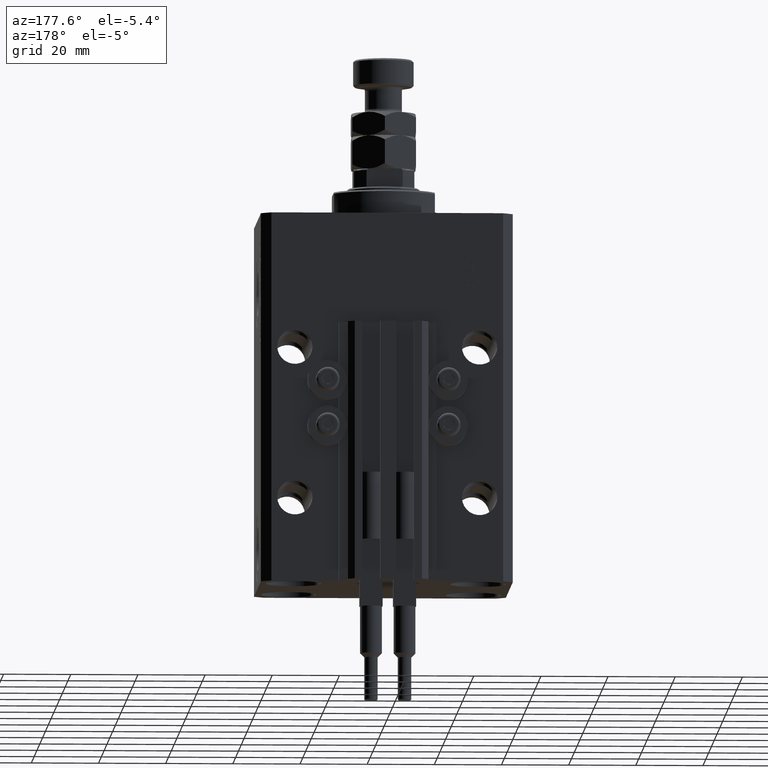
[diagram: clean part render]
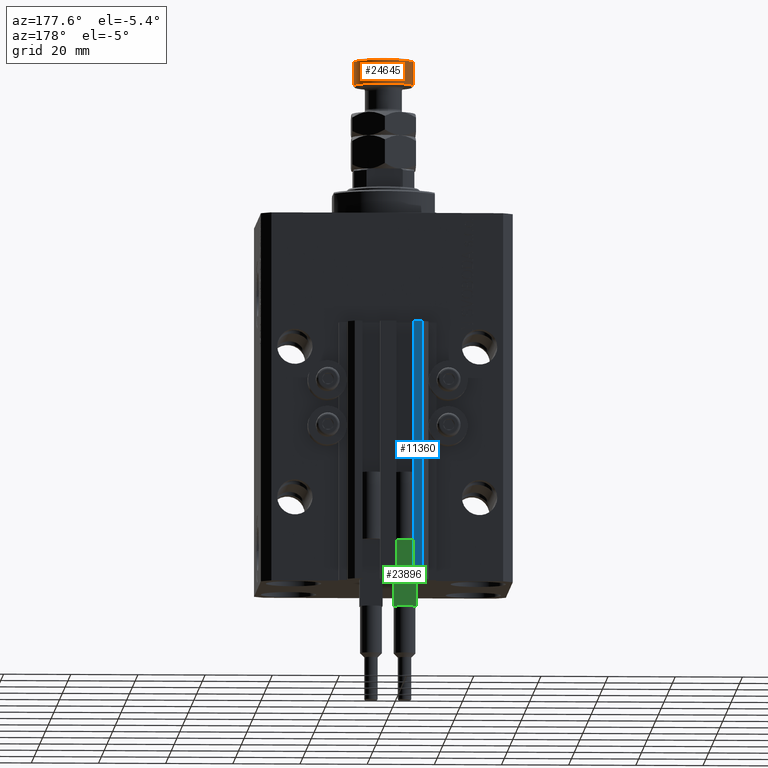
[diagram: same view with three faces highlighted in distinct colors, each labeled with its STEP entity id]
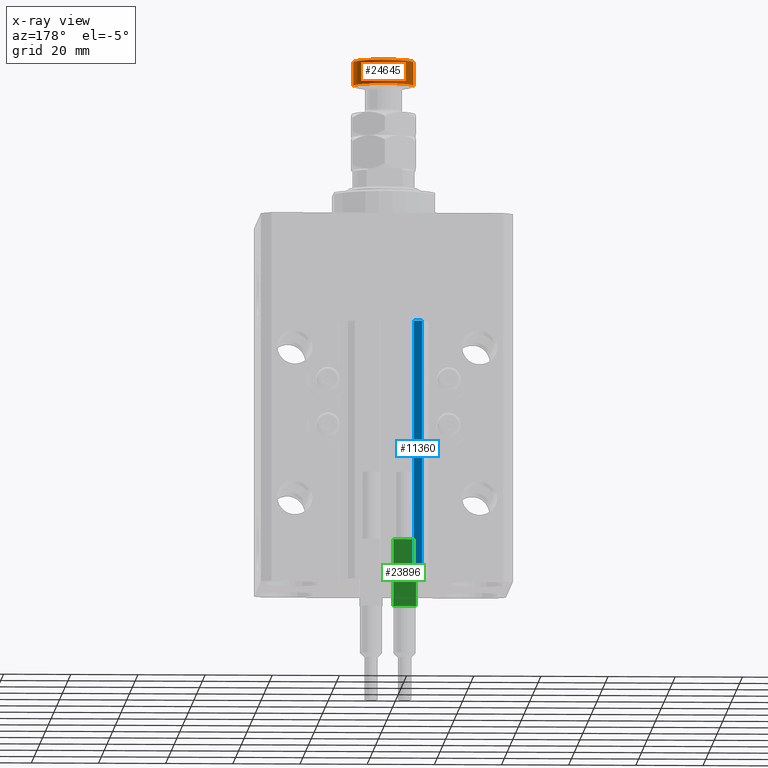
[diagram: x-ray of the same camera — body ghosted, the three highlighted faces saturated]
A machine part, auxiliary view with three faces highlighted in distinct colors.
The next image is the same camera in x-ray (body ghosted, the three faces saturated) — at least one of them is partly hidden behind the body in this view.
Their STEP definitions:

[orange] entity #24645 — the highlighted cylindrical surface (edge-blend (fillet) strip) has radius 9 mm, axis along (-0, -0, -1).
#549 = EDGE_CURVE ( 'NONE', #36431, #32442, #13982, .T. ) ;
#1425 = ORIENTED_EDGE ( 'NONE', *, *, #42925, .T. ) ;
#2677 = EDGE_CURVE ( 'NONE', #24066, #13907, #19487, .T. ) ;
#5591 = CARTESIAN_POINT ( 'NONE',  ( 9.000000000000000000, 1.102182119232617714E-15, 33.00000000000000000 ) ) ;
#6250 = CIRCLE ( 'NONE', #48520, 9.000000000000000000 ) ;
#7547 = DIRECTION ( 'NONE',  ( 1.000000000000000000, 0.000000000000000000, 0.000000000000000000 ) ) ;
#11253 = DIRECTION ( 'NONE',  ( -1.000000000000000000, 0.000000000000000000, 0.000000000000000000 ) ) ;
#11362 = CARTESIAN_POINT ( 'NONE',  ( 0.000000000000000000, 0.000000000000000000, 32.49999999999999289 ) ) ;
#11417 = DIRECTION ( 'NONE',  ( -0.000000000000000000, -0.000000000000000000, 1.000000000000000000 ) ) ;
#13907 = VERTEX_POINT ( 'NONE', #49829 ) ;
#13982 = LINE ( 'NONE', #5591, #33048 ) ;
#15801 = DIRECTION ( 'NONE',  ( -0.000000000000000000, -0.000000000000000000, -1.000000000000000000 ) ) ;
#18743 = DIRECTION ( 'NONE',  ( -0.000000000000000000, -0.000000000000000000, -1.000000000000000000 ) ) ;
#19487 = LINE ( 'NONE', #42159, #28257 ) ;
#20155 = CIRCLE ( 'NONE', #31520, 9.000000000000000000 ) ;
#21188 = AXIS2_PLACEMENT_3D ( 'NONE', #49960, #15801, #11253 ) ;
#22353 = CARTESIAN_POINT ( 'NONE',  ( 0.000000000000000000, 0.000000000000000000, 25.49999999999999289 ) ) ;
#22439 = CYLINDRICAL_SURFACE ( 'NONE', #21188, 9.000000000000000000 ) ;
#24066 = VERTEX_POINT ( 'NONE', #33274 ) ;
#24550 = ORIENTED_EDGE ( 'NONE', *, *, #41730, .T. ) ;
#24645 = ADVANCED_FACE ( 'NONE', ( #35148 ), #22439, .T. ) ;
#25758 = ORIENTED_EDGE ( 'NONE', *, *, #549, .T. ) ;
#28257 = VECTOR ( 'NONE', #18743, 1000.000000000000000 ) ;
#28403 = CARTESIAN_POINT ( 'NONE',  ( 9.000000000000000000, 1.102182119232617714E-15, 32.49999999999999289 ) ) ;
#31520 = AXIS2_PLACEMENT_3D ( 'NONE', #11362, #42416, #7547 ) ;
#31560 = EDGE_LOOP ( 'NONE', ( #1425, #25758, #24550, #31614 ) ) ;
#31614 = ORIENTED_EDGE ( 'NONE', *, *, #2677, .F. ) ;
#32442 = VERTEX_POINT ( 'NONE', #33793 ) ;
#33048 = VECTOR ( 'NONE', #37132, 1000.000000000000000 ) ;
#33274 = CARTESIAN_POINT ( 'NONE',  ( -9.000000000000000000, 0.000000000000000000, 32.49999999999999289 ) ) ;
#33793 = CARTESIAN_POINT ( 'NONE',  ( 9.000000000000000000, 1.102182119232617714E-15, 25.49999999999999289 ) ) ;
#35148 = FACE_OUTER_BOUND ( 'NONE', #31560, .T. ) ;
#36431 = VERTEX_POINT ( 'NONE', #28403 ) ;
#37132 = DIRECTION ( 'NONE',  ( -0.000000000000000000, -0.000000000000000000, -1.000000000000000000 ) ) ;
#37878 = DIRECTION ( 'NONE',  ( 1.000000000000000000, 0.000000000000000000, 0.000000000000000000 ) ) ;
#41730 = EDGE_CURVE ( 'NONE', #32442, #13907, #6250, .T. ) ;
#42159 = CARTESIAN_POINT ( 'NONE',  ( -9.000000000000000000, 0.000000000000000000, 33.00000000000000000 ) ) ;
#42416 = DIRECTION ( 'NONE',  ( 0.000000000000000000, 0.000000000000000000, -1.000000000000000000 ) ) ;
#42925 = EDGE_CURVE ( 'NONE', #24066, #36431, #20155, .T. ) ;
#48520 = AXIS2_PLACEMENT_3D ( 'NONE', #22353, #11417, #37878 ) ;
#49829 = CARTESIAN_POINT ( 'NONE',  ( -9.000000000000000000, 0.000000000000000000, 25.49999999999999289 ) ) ;
#49960 = CARTESIAN_POINT ( 'NONE',  ( 0.000000000000000000, 0.000000000000000000, 33.00000000000000000 ) ) ;

[blue] entity #11360 — the highlighted planar face has unit normal (0, 1, 0).
#766 = LINE ( 'NONE', #31829, #47227 ) ;
#3629 = CARTESIAN_POINT ( 'NONE',  ( -7.650000000000000355, 35.50000000000000000, -110.0000000000000000 ) ) ;
#4836 = CARTESIAN_POINT ( 'NONE',  ( -10.00000000000000000, 35.50000000000000000, -33.00000000000000000 ) ) ;
#5574 = DIRECTION ( 'NONE',  ( 0.000000000000000000, 0.000000000000000000, 1.000000000000000000 ) ) ;
#5875 = VECTOR ( 'NONE', #5574, 1000.000000000000000 ) ;
#10263 = ORIENTED_EDGE ( 'NONE', *, *, #19243, .T. ) ;
#11015 = DIRECTION ( 'NONE',  ( 0.000000000000000000, 1.000000000000000000, -0.000000000000000000 ) ) ;
#11360 = ADVANCED_FACE ( 'NONE', ( #38494 ), #38239, .T. ) ;
#11601 = ORIENTED_EDGE ( 'NONE', *, *, #40109, .F. ) ;
#12067 = ORIENTED_EDGE ( 'NONE', *, *, #26707, .T. ) ;
#12776 = CARTESIAN_POINT ( 'NONE',  ( -7.650000000000000355, 35.50000000000000000, -110.0000000000000000 ) ) ;
#13288 = VERTEX_POINT ( 'NONE', #15795 ) ;
#13454 = LINE ( 'NONE', #40943, #5875 ) ;
#14662 = EDGE_LOOP ( 'NONE', ( #11601, #17227, #12067, #10263 ) ) ;
#15795 = CARTESIAN_POINT ( 'NONE',  ( -10.00000000000000000, 35.50000000000000000, -110.0000000000000000 ) ) ;
#16354 = EDGE_CURVE ( 'NONE', #31378, #30613, #766, .T. ) ;
#17089 = LINE ( 'NONE', #12776, #47296 ) ;
#17227 = ORIENTED_EDGE ( 'NONE', *, *, #16354, .F. ) ;
#19243 = EDGE_CURVE ( 'NONE', #13288, #44302, #13454, .T. ) ;
#20275 = CARTESIAN_POINT ( 'NONE',  ( -7.650000000000000355, 35.50000000000000000, -110.0000000000000000 ) ) ;
#24404 = AXIS2_PLACEMENT_3D ( 'NONE', #3629, #11015, #42329 ) ;
#26707 = EDGE_CURVE ( 'NONE', #31378, #13288, #17089, .T. ) ;
#27207 = LINE ( 'NONE', #42485, #46869 ) ;
#30613 = VERTEX_POINT ( 'NONE', #43189 ) ;
#31378 = VERTEX_POINT ( 'NONE', #20275 ) ;
#31829 = CARTESIAN_POINT ( 'NONE',  ( -7.650000000000000355, 35.50000000000000000, -110.0000000000000000 ) ) ;
#38239 = PLANE ( 'NONE',  #24404 ) ;
#38494 = FACE_OUTER_BOUND ( 'NONE', #14662, .T. ) ;
#39710 = DIRECTION ( 'NONE',  ( 0.000000000000000000, 0.000000000000000000, 1.000000000000000000 ) ) ;
#40109 = EDGE_CURVE ( 'NONE', #30613, #44302, #27207, .T. ) ;
#40496 = DIRECTION ( 'NONE',  ( -1.000000000000000000, 0.000000000000000000, 0.000000000000000000 ) ) ;
#40943 = CARTESIAN_POINT ( 'NONE',  ( -10.00000000000000000, 35.50000000000000000, -110.0000000000000000 ) ) ;
#42329 = DIRECTION ( 'NONE',  ( 0.000000000000000000, 0.000000000000000000, 1.000000000000000000 ) ) ;
#42485 = CARTESIAN_POINT ( 'NONE',  ( -7.650000000000000355, 35.50000000000000000, -33.00000000000000000 ) ) ;
#43189 = CARTESIAN_POINT ( 'NONE',  ( -7.650000000000000355, 35.50000000000000000, -33.00000000000000000 ) ) ;
#44302 = VERTEX_POINT ( 'NONE', #4836 ) ;
#46869 = VECTOR ( 'NONE', #50134, 1000.000000000000000 ) ;
#47227 = VECTOR ( 'NONE', #39710, 1000.000000000000000 ) ;
#47296 = VECTOR ( 'NONE', #40496, 1000.000000000000000 ) ;
#50134 = DIRECTION ( 'NONE',  ( -1.000000000000000000, 0.000000000000000000, 0.000000000000000000 ) ) ;

[green] entity #23896 — the highlighted planar face has unit normal (0, -1, 0).
#18 = ORIENTED_EDGE ( 'NONE', *, *, #46537, .F. ) ;
#110 = ORIENTED_EDGE ( 'NONE', *, *, #18622, .T. ) ;
#964 = VERTEX_POINT ( 'NONE', #16361 ) ;
#1122 = ORIENTED_EDGE ( 'NONE', *, *, #38233, .T. ) ;
#1557 = DIRECTION ( 'NONE',  ( 0.000000000000000000, -1.000000000000000000, 0.000000000000000000 ) ) ;
#2221 = CARTESIAN_POINT ( 'NONE',  ( -3.399999999999999911, 1.500000000000000000, 40.00000000000000000 ) ) ;
#2381 = VERTEX_POINT ( 'NONE', #36571 ) ;
#2624 = VECTOR ( 'NONE', #34604, 1000.000000000000000 ) ;
#2889 = VECTOR ( 'NONE', #22093, 1000.000000000000000 ) ;
#4317 = CARTESIAN_POINT ( 'NONE',  ( -3.399999999999999911, 1.500000000000000000, 40.00000000000000000 ) ) ;
#4922 = CARTESIAN_POINT ( 'NONE',  ( 3.051229260478471428, 1.500000000000000000, 20.00000000000000000 ) ) ;
#4961 = VECTOR ( 'NONE', #8811, 1000.000000000000000 ) ;
#5464 = LINE ( 'NONE', #16666, #29441 ) ;
#8811 = DIRECTION ( 'NONE',  ( -1.000000000000000000, -0.000000000000000000, -0.000000000000000000 ) ) ;
#8922 = CARTESIAN_POINT ( 'NONE',  ( 3.400000000000000355, 1.500000000000000000, 40.00000000000000000 ) ) ;
#9147 = CARTESIAN_POINT ( 'NONE',  ( -3.399999999999999911, 1.500000000000000000, 20.00000000000000000 ) ) ;
#9798 = CARTESIAN_POINT ( 'NONE',  ( -3.399999999999999911, 1.500000000000000000, 40.00000000000000000 ) ) ;
#10907 = EDGE_CURVE ( 'NONE', #34545, #46022, #39183, .T. ) ;
#11318 = VECTOR ( 'NONE', #46732, 1000.000000000000000 ) ;
#12305 = VECTOR ( 'NONE', #24452, 1000.000000000000000 ) ;
#12777 = FACE_OUTER_BOUND ( 'NONE', #24029, .T. ) ;
#15393 = CARTESIAN_POINT ( 'NONE',  ( -3.399999999999999911, 1.500000000000000000, 40.00000000000000000 ) ) ;
#16361 = CARTESIAN_POINT ( 'NONE',  ( -2.883140648667699146, 1.500000000000000000, 40.00000000000000000 ) ) ;
#16666 = CARTESIAN_POINT ( 'NONE',  ( -3.399999999999999911, 1.500000000000000000, 20.00000000000000000 ) ) ;
#16695 = LINE ( 'NONE', #20755, #4961 ) ;
#17172 = DIRECTION ( 'NONE',  ( -1.000000000000000000, -0.000000000000000000, -0.000000000000000000 ) ) ;
#17342 = EDGE_CURVE ( 'NONE', #34545, #18063, #32079, .T. ) ;
#18063 = VERTEX_POINT ( 'NONE', #18950 ) ;
#18593 = CARTESIAN_POINT ( 'NONE',  ( -3.399999999999999911, 1.500000000000000000, 20.00000000000000000 ) ) ;
#18622 = EDGE_CURVE ( 'NONE', #49278, #45782, #5464, .T. ) ;
#18950 = CARTESIAN_POINT ( 'NONE',  ( 3.400000000000000355, 1.500000000000000000, 20.00000000000000000 ) ) ;
#18971 = EDGE_CURVE ( 'NONE', #18063, #49278, #49406, .T. ) ;
#19511 = AXIS2_PLACEMENT_3D ( 'NONE', #15393, #1557, #28795 ) ;
#19828 = DIRECTION ( 'NONE',  ( -1.000000000000000000, -0.000000000000000000, -0.000000000000000000 ) ) ;
#20655 = PLANE ( 'NONE',  #19511 ) ;
#20755 = CARTESIAN_POINT ( 'NONE',  ( -3.399999999999999911, 1.500000000000000000, 40.00000000000000000 ) ) ;
#21502 = DIRECTION ( 'NONE',  ( -1.000000000000000000, -0.000000000000000000, -0.000000000000000000 ) ) ;
#22093 = DIRECTION ( 'NONE',  ( -1.000000000000000000, -0.000000000000000000, -0.000000000000000000 ) ) ;
#23309 = CARTESIAN_POINT ( 'NONE',  ( -3.399999999999999911, 1.500000000000000000, 40.00000000000000000 ) ) ;
#23896 = ADVANCED_FACE ( 'NONE', ( #12777 ), #20655, .F. ) ;
#24029 = EDGE_LOOP ( 'NONE', ( #45264, #110, #1122, #18, #31737, #38413, #45780, #26504 ) ) ;
#24051 = VERTEX_POINT ( 'NONE', #2221 ) ;
#24452 = DIRECTION ( 'NONE',  ( -0.000000000000000000, -0.000000000000000000, -1.000000000000000000 ) ) ;
#25039 = EDGE_CURVE ( 'NONE', #964, #24051, #16695, .T. ) ;
#25828 = VECTOR ( 'NONE', #21502, 1000.000000000000000 ) ;
#26504 = ORIENTED_EDGE ( 'NONE', *, *, #17342, .T. ) ;
#26879 = CARTESIAN_POINT ( 'NONE',  ( -3.051229260478471428, 1.500000000000000000, 20.00000000000000000 ) ) ;
#28487 = LINE ( 'NONE', #9147, #2889 ) ;
#28795 = DIRECTION ( 'NONE',  ( 0.000000000000000000, -0.000000000000000000, -1.000000000000000000 ) ) ;
#29441 = VECTOR ( 'NONE', #17172, 1000.000000000000000 ) ;
#31737 = ORIENTED_EDGE ( 'NONE', *, *, #25039, .F. ) ;
#32079 = LINE ( 'NONE', #8922, #12305 ) ;
#33336 = VECTOR ( 'NONE', #19828, 1000.000000000000000 ) ;
#34545 = VERTEX_POINT ( 'NONE', #49885 ) ;
#34604 = DIRECTION ( 'NONE',  ( -1.000000000000000000, -0.000000000000000000, -0.000000000000000000 ) ) ;
#35003 = LINE ( 'NONE', #23309, #11318 ) ;
#36571 = CARTESIAN_POINT ( 'NONE',  ( -3.399999999999999911, 1.500000000000000000, 20.00000000000000000 ) ) ;
#38233 = EDGE_CURVE ( 'NONE', #45782, #2381, #28487, .T. ) ;
#38413 = ORIENTED_EDGE ( 'NONE', *, *, #43182, .F. ) ;
#39183 = LINE ( 'NONE', #4317, #33336 ) ;
#40451 = CARTESIAN_POINT ( 'NONE',  ( 2.883140648667699146, 1.500000000000000000, 40.00000000000000000 ) ) ;
#43182 = EDGE_CURVE ( 'NONE', #46022, #964, #44667, .T. ) ;
#44667 = LINE ( 'NONE', #9798, #25828 ) ;
#45264 = ORIENTED_EDGE ( 'NONE', *, *, #18971, .T. ) ;
#45780 = ORIENTED_EDGE ( 'NONE', *, *, #10907, .F. ) ;
#45782 = VERTEX_POINT ( 'NONE', #26879 ) ;
#46022 = VERTEX_POINT ( 'NONE', #40451 ) ;
#46537 = EDGE_CURVE ( 'NONE', #24051, #2381, #35003, .T. ) ;
#46732 = DIRECTION ( 'NONE',  ( -0.000000000000000000, -0.000000000000000000, -1.000000000000000000 ) ) ;
#49278 = VERTEX_POINT ( 'NONE', #4922 ) ;
#49406 = LINE ( 'NONE', #18593, #2624 ) ;
#49885 = CARTESIAN_POINT ( 'NONE',  ( 3.400000000000000355, 1.500000000000000000, 40.00000000000000000 ) ) ;